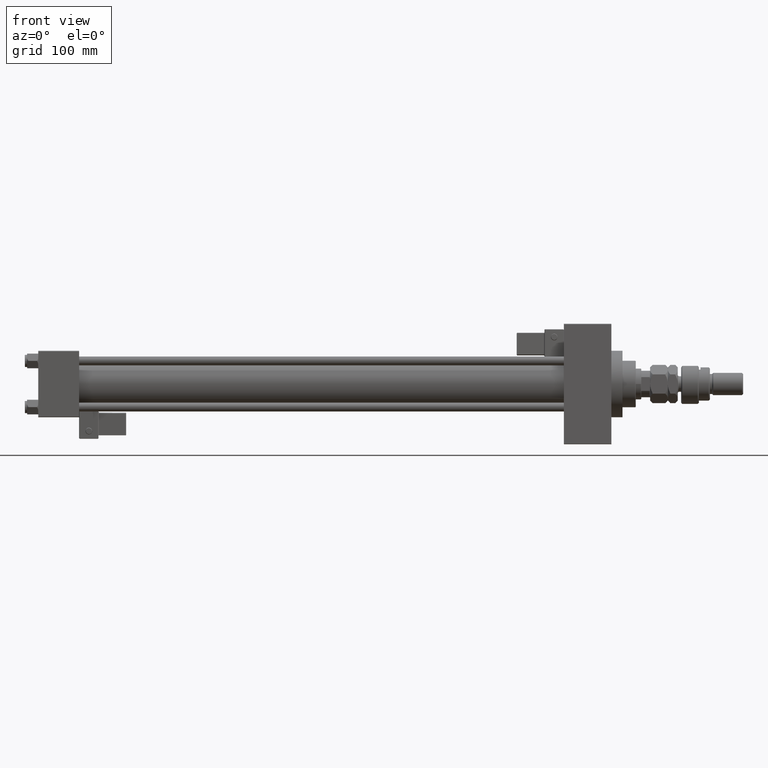
[diagram: clean part render]
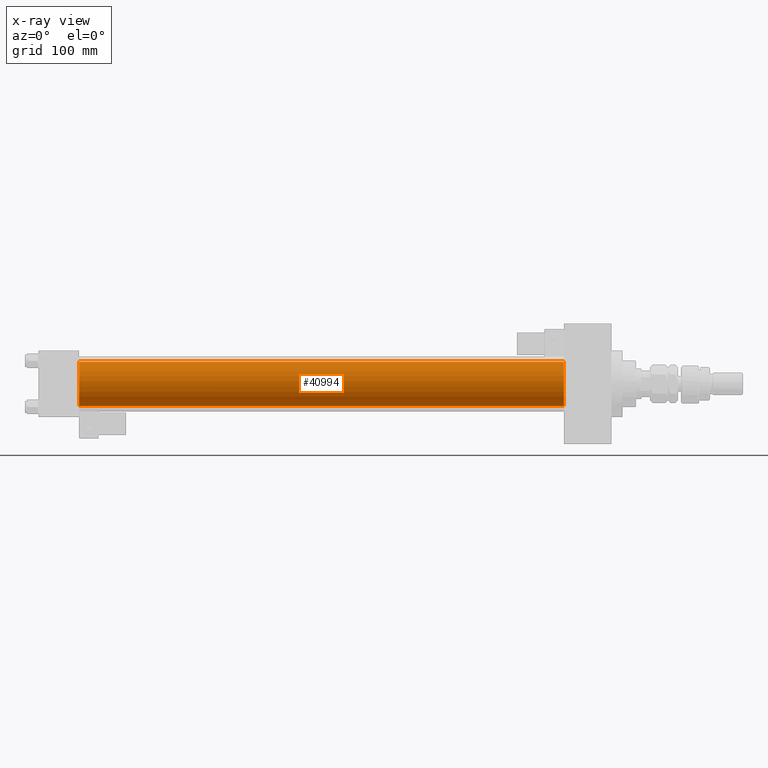
[diagram: x-ray — body ghosted, one internal face saturated and labeled with its STEP entity id]
A machine part, front view, then the same camera in x-ray: the body is ghosted and one INTERNAL B-rep face — a face not visible from any outside direction — is saturated and labeled: STEP entity #40994.
In plain terms, the highlighted cylindrical surface (edge-blend (fillet) strip) has radius 20 mm, axis along (-1, -0, -0).
Its self-contained STEP definition (entity closure, byte-faithful):
#397 = EDGE_LOOP ( 'NONE', ( #38778, #35096, #37198, #30340 ) ) ;
#2018 = CIRCLE ( 'NONE', #18978, 20.00000000000000000 ) ;
#5390 = FACE_OUTER_BOUND ( 'NONE', #397, .T. ) ;
#6338 = CARTESIAN_POINT ( 'NONE',  ( 37.00000000000000000, -2.602085213965210642E-15, 0.000000000000000000 ) ) ;
#6687 = CARTESIAN_POINT ( 'NONE',  ( 475.0000000000000000, -2.602085213965210642E-15, 20.00000000000000000 ) ) ;
#7081 = EDGE_CURVE ( 'NONE', #22372, #22962, #29395, .T. ) ;
#11061 = CARTESIAN_POINT ( 'NONE',  ( 475.0000000000000000, -2.602085213965210642E-15, 0.000000000000000000 ) ) ;
#14027 = LINE ( 'NONE', #31283, #20940 ) ;
#14134 = CARTESIAN_POINT ( 'NONE',  ( 475.0000000000000000, -2.602085213965210642E-15, 0.000000000000000000 ) ) ;
#15049 = DIRECTION ( 'NONE',  ( 1.000000000000000000, 0.000000000000000000, 0.000000000000000000 ) ) ;
#16734 = EDGE_CURVE ( 'NONE', #40709, #33809, #2018, .T. ) ;
#17386 = DIRECTION ( 'NONE',  ( -1.000000000000000000, -0.000000000000000000, -0.000000000000000000 ) ) ;
#18266 = CARTESIAN_POINT ( 'NONE',  ( 37.00000000000000000, -1.527916156705042519E-16, -20.00000000000000000 ) ) ;
#18689 = AXIS2_PLACEMENT_3D ( 'NONE', #14134, #38053, #34583 ) ;
#18802 = DIRECTION ( 'NONE',  ( 0.000000000000000000, 0.000000000000000000, -1.000000000000000000 ) ) ;
#18978 = AXIS2_PLACEMENT_3D ( 'NONE', #6338, #43254, #18802 ) ;
#20940 = VECTOR ( 'NONE', #42716, 1000.000000000000000 ) ;
#22160 = CARTESIAN_POINT ( 'NONE',  ( 475.0000000000000000, -1.527916156705042519E-16, -20.00000000000000000 ) ) ;
#22372 = VERTEX_POINT ( 'NONE', #6687 ) ;
#22962 = VERTEX_POINT ( 'NONE', #39907 ) ;
#25561 = EDGE_CURVE ( 'NONE', #22372, #40709, #14027, .T. ) ;
#29395 = CIRCLE ( 'NONE', #38712, 20.00000000000000000 ) ;
#30340 = ORIENTED_EDGE ( 'NONE', *, *, #25561, .F. ) ;
#31283 = CARTESIAN_POINT ( 'NONE',  ( 475.0000000000000000, -2.602085213965210642E-15, 20.00000000000000000 ) ) ;
#33809 = VERTEX_POINT ( 'NONE', #18266 ) ;
#33954 = VECTOR ( 'NONE', #17386, 1000.000000000000000 ) ;
#34583 = DIRECTION ( 'NONE',  ( 0.000000000000000000, 0.000000000000000000, 1.000000000000000000 ) ) ;
#35096 = ORIENTED_EDGE ( 'NONE', *, *, #39606, .T. ) ;
#37198 = ORIENTED_EDGE ( 'NONE', *, *, #16734, .F. ) ;
#37792 = CYLINDRICAL_SURFACE ( 'NONE', #18689, 20.00000000000000000 ) ;
#38053 = DIRECTION ( 'NONE',  ( -1.000000000000000000, -0.000000000000000000, -0.000000000000000000 ) ) ;
#38712 = AXIS2_PLACEMENT_3D ( 'NONE', #11061, #15049, #47762 ) ;
#38778 = ORIENTED_EDGE ( 'NONE', *, *, #7081, .T. ) ;
#39606 = EDGE_CURVE ( 'NONE', #22962, #33809, #42613, .T. ) ;
#39907 = CARTESIAN_POINT ( 'NONE',  ( 475.0000000000000000, -1.527916156705042519E-16, -20.00000000000000000 ) ) ;
#40709 = VERTEX_POINT ( 'NONE', #44215 ) ;
#40994 = ADVANCED_FACE ( 'NONE', ( #5390 ), #37792, .F. ) ;
#42613 = LINE ( 'NONE', #22160, #33954 ) ;
#42716 = DIRECTION ( 'NONE',  ( -1.000000000000000000, -0.000000000000000000, -0.000000000000000000 ) ) ;
#43254 = DIRECTION ( 'NONE',  ( 1.000000000000000000, 0.000000000000000000, 0.000000000000000000 ) ) ;
#44215 = CARTESIAN_POINT ( 'NONE',  ( 37.00000000000000000, -2.602085213965210642E-15, 20.00000000000000000 ) ) ;
#47762 = DIRECTION ( 'NONE',  ( 0.000000000000000000, 0.000000000000000000, -1.000000000000000000 ) ) ;